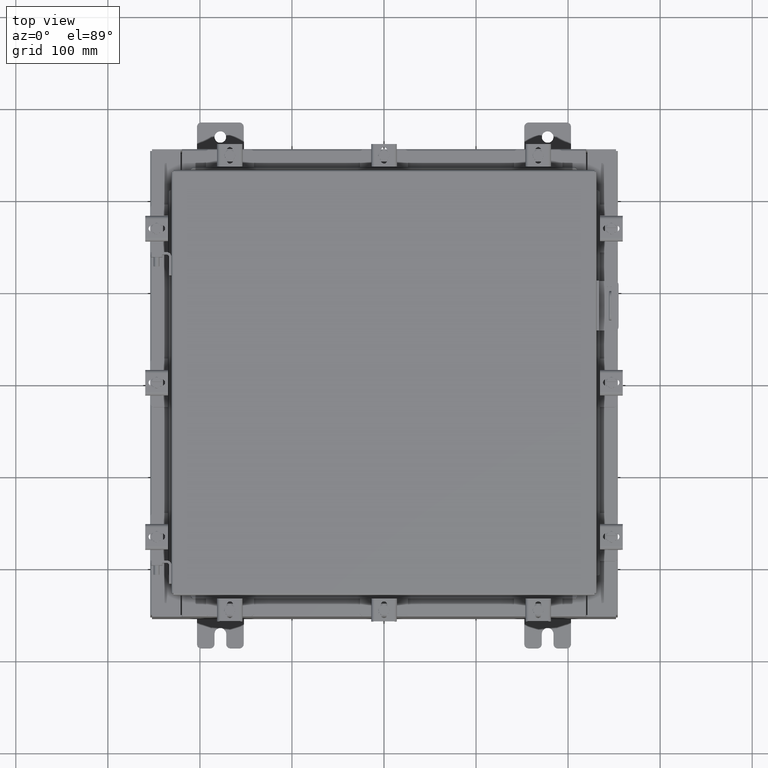
[diagram: clean part render]
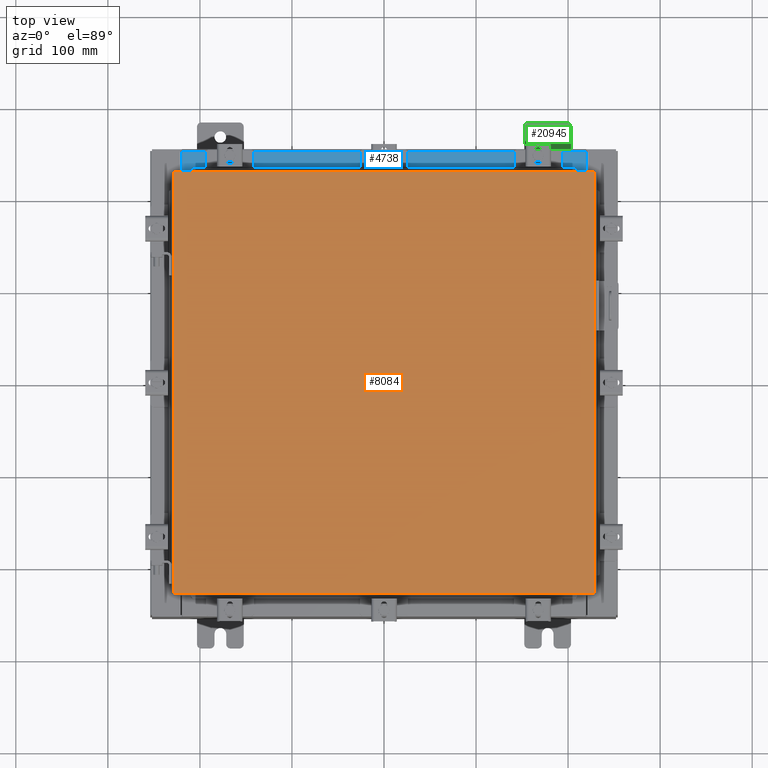
[diagram: same view with three faces highlighted in distinct colors, each labeled with its STEP entity id]
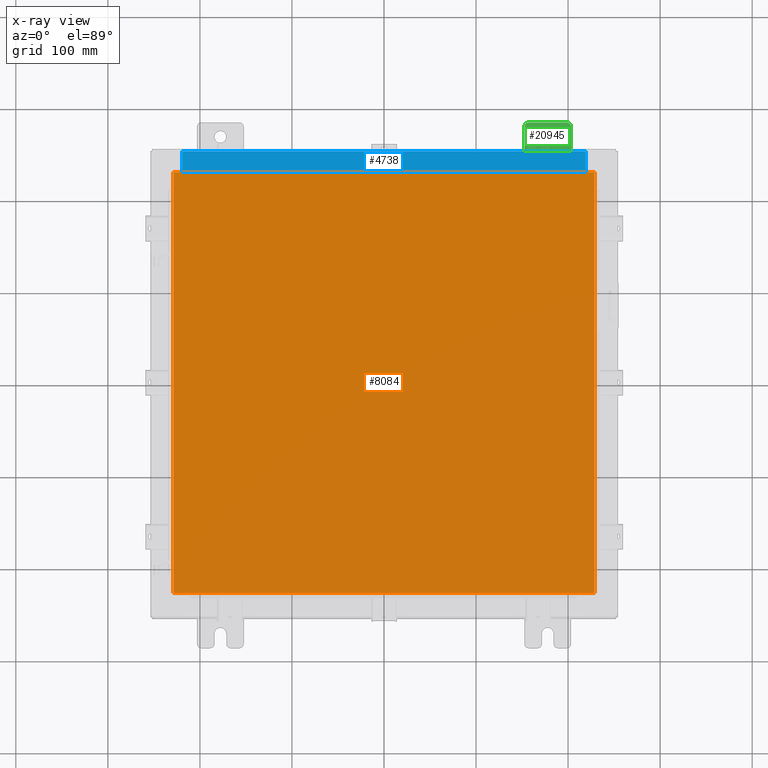
[diagram: x-ray of the same camera — body ghosted, the three highlighted faces saturated]
A machine part, top view with three faces highlighted in distinct colors.
The next image is the same camera in x-ray (body ghosted, the three faces saturated) — at least one of them is partly hidden behind the body in this view.
Their STEP definitions:

[orange] entity #8084 — the highlighted planar face has unit normal (0, 0, -1).
#364 = CARTESIAN_POINT ( 'NONE',  ( 0.0000000000000000000, 0.0000000000000000000, 0.0000000000000000000 ) ) ;
#685 = VECTOR ( 'NONE', #7649, 39.37007874015748100 ) ;
#1277 = CARTESIAN_POINT ( 'NONE',  ( -9.006299999999997800, 9.006299999999999500, -1.092739197465705300E-015 ) ) ;
#1596 = CARTESIAN_POINT ( 'NONE',  ( 9.006300000000001300, -9.006299999999999500, 0.0000000000000000000 ) ) ;
#1847 = CARTESIAN_POINT ( 'NONE',  ( 9.006300000000001300, 9.006299999999999500, 0.0000000000000000000 ) ) ;
#2116 = DIRECTION ( 'NONE',  ( -1.000000000000000000, 0.0000000000000000000, -0.0000000000000000000 ) ) ;
#2186 = VERTEX_POINT ( 'NONE', #15948 ) ;
#2196 = DIRECTION ( 'NONE',  ( -1.000000000000000000, -0.0000000000000000000, -0.0000000000000000000 ) ) ;
#3673 = VECTOR ( 'NONE', #20403, 39.37007874015748100 ) ;
#3798 = EDGE_CURVE ( 'NONE', #11006, #18369, #21115, .T. ) ;
#3810 = ORIENTED_EDGE ( 'NONE', *, *, #3798, .T. ) ;
#4671 = CARTESIAN_POINT ( 'NONE',  ( 9.006300000000001300, -9.006299999999999500, 0.0000000000000000000 ) ) ;
#6293 = EDGE_LOOP ( 'NONE', ( #19772, #3810, #17375, #11751 ) ) ;
#6444 = EDGE_CURVE ( 'NONE', #18369, #7060, #7417, .T. ) ;
#6595 = FACE_OUTER_BOUND ( 'NONE', #6293, .T. ) ;
#7060 = VERTEX_POINT ( 'NONE', #14791 ) ;
#7351 = PLANE ( 'NONE',  #13491 ) ;
#7417 = LINE ( 'NONE', #12650, #11482 ) ;
#7649 = DIRECTION ( 'NONE',  ( 1.000000000000000000, -0.0000000000000000000, -0.0000000000000000000 ) ) ;
#8084 = ADVANCED_FACE ( 'NONE', ( #6595 ), #7351, .F. ) ;
#9991 = LINE ( 'NONE', #16292, #685 ) ;
#11006 = VERTEX_POINT ( 'NONE', #1596 ) ;
#11352 = EDGE_CURVE ( 'NONE', #2186, #11006, #9991, .T. ) ;
#11482 = VECTOR ( 'NONE', #2196, 39.37007874015748100 ) ;
#11692 = DIRECTION ( 'NONE',  ( 0.0000000000000000000, 1.000000000000000000, 0.0000000000000000000 ) ) ;
#11751 = ORIENTED_EDGE ( 'NONE', *, *, #16034, .T. ) ;
#12402 = VECTOR ( 'NONE', #11692, 39.37007874015748100 ) ;
#12577 = DIRECTION ( 'NONE',  ( 0.0000000000000000000, 0.0000000000000000000, -1.000000000000000000 ) ) ;
#12650 = CARTESIAN_POINT ( 'NONE',  ( 9.006300000000001300, 9.006299999999999500, 0.0000000000000000000 ) ) ;
#13491 = AXIS2_PLACEMENT_3D ( 'NONE', #364, #12577, #2116 ) ;
#14791 = CARTESIAN_POINT ( 'NONE',  ( -9.006299999999997800, 9.006299999999999500, -1.092739197465705300E-015 ) ) ;
#15948 = CARTESIAN_POINT ( 'NONE',  ( -9.006299999999997800, -9.006299999999999500, 0.0000000000000000000 ) ) ;
#16034 = EDGE_CURVE ( 'NONE', #7060, #2186, #17594, .T. ) ;
#16292 = CARTESIAN_POINT ( 'NONE',  ( -9.006299999999997800, -9.006299999999999500, 0.0000000000000000000 ) ) ;
#17375 = ORIENTED_EDGE ( 'NONE', *, *, #6444, .T. ) ;
#17594 = LINE ( 'NONE', #1277, #3673 ) ;
#18369 = VERTEX_POINT ( 'NONE', #1847 ) ;
#19772 = ORIENTED_EDGE ( 'NONE', *, *, #11352, .T. ) ;
#20403 = DIRECTION ( 'NONE',  ( 0.0000000000000000000, -1.000000000000000000, 0.0000000000000000000 ) ) ;
#21115 = LINE ( 'NONE', #4671, #12402 ) ;

[blue] entity #4738 — the highlighted planar face has unit normal (0, 0, 1).
#270 = CARTESIAN_POINT ( 'NONE',  ( -8.637200000000000000, -1.287299999999999200, 3.000000000000005300 ) ) ;
#783 = VERTEX_POINT ( 'NONE', #7765 ) ;
#1209 = CARTESIAN_POINT ( 'NONE',  ( -8.637200000000000000, -0.08770000000000000000, 3.000000000000000900 ) ) ;
#1402 = ORIENTED_EDGE ( 'NONE', *, *, #18797, .T. ) ;
#2471 = DIRECTION ( 'NONE',  ( -0.0000000000000000000, 1.000000000000000000, -3.566381192773190000E-015 ) ) ;
#3634 = LINE ( 'NONE', #4256, #12371 ) ;
#4256 = CARTESIAN_POINT ( 'NONE',  ( -8.637200000000000000, -0.07469999999999973900, 3.000000000000000900 ) ) ;
#4583 = CARTESIAN_POINT ( 'NONE',  ( -2.773851121247453900E-018, -0.08770000000000000000, 3.000000000000001300 ) ) ;
#4738 = ADVANCED_FACE ( 'NONE', ( #12096 ), #19948, .T. ) ;
#5003 = LINE ( 'NONE', #13374, #14251 ) ;
#5248 = ORIENTED_EDGE ( 'NONE', *, *, #17817, .F. ) ;
#5523 = LINE ( 'NONE', #16118, #14232 ) ;
#5909 = EDGE_LOOP ( 'NONE', ( #6785, #14286, #5248, #1402 ) ) ;
#6017 = CARTESIAN_POINT ( 'NONE',  ( 0.0000000000000000000, 1.069354855923099900E-014, 3.000000000000000900 ) ) ;
#6785 = ORIENTED_EDGE ( 'NONE', *, *, #20841, .F. ) ;
#6832 = VERTEX_POINT ( 'NONE', #1209 ) ;
#7213 = VERTEX_POINT ( 'NONE', #17481 ) ;
#7765 = CARTESIAN_POINT ( 'NONE',  ( 8.637200000000000000, -1.287299999999999900, 3.000000000000005300 ) ) ;
#7793 = AXIS2_PLACEMENT_3D ( 'NONE', #6017, #14685, #21701 ) ;
#9646 = VERTEX_POINT ( 'NONE', #270 ) ;
#9734 = LINE ( 'NONE', #4583, #17891 ) ;
#9845 = DIRECTION ( 'NONE',  ( -1.000000000000000000, 3.162886113166609200E-017, -1.128005754888089100E-031 ) ) ;
#12096 = FACE_OUTER_BOUND ( 'NONE', #5909, .T. ) ;
#12371 = VECTOR ( 'NONE', #2471, 39.37007874015748100 ) ;
#13374 = CARTESIAN_POINT ( 'NONE',  ( 8.637200000000000000, -1.287299999999999900, 3.000000000000005300 ) ) ;
#14232 = VECTOR ( 'NONE', #19616, 39.37007874015748100 ) ;
#14251 = VECTOR ( 'NONE', #20308, 39.37007874015748100 ) ;
#14286 = ORIENTED_EDGE ( 'NONE', *, *, #20970, .F. ) ;
#14685 = DIRECTION ( 'NONE',  ( 0.0000000000000000000, 3.566381192773190000E-015, 1.000000000000000000 ) ) ;
#16118 = CARTESIAN_POINT ( 'NONE',  ( 8.637200000000000000, -1.300299999999999800, 3.000000000000005300 ) ) ;
#17481 = CARTESIAN_POINT ( 'NONE',  ( 8.637200000000000000, -0.08769999999999965300, 3.000000000000000900 ) ) ;
#17817 = EDGE_CURVE ( 'NONE', #7213, #783, #5523, .T. ) ;
#17891 = VECTOR ( 'NONE', #9845, 39.37007874015748100 ) ;
#18797 = EDGE_CURVE ( 'NONE', #7213, #6832, #9734, .T. ) ;
#19616 = DIRECTION ( 'NONE',  ( -0.0000000000000000000, -1.000000000000000000, 3.566381192773190000E-015 ) ) ;
#19948 = PLANE ( 'NONE',  #7793 ) ;
#20308 = DIRECTION ( 'NONE',  ( -1.000000000000000000, 0.0000000000000000000, 0.0000000000000000000 ) ) ;
#20841 = EDGE_CURVE ( 'NONE', #9646, #6832, #3634, .T. ) ;
#20970 = EDGE_CURVE ( 'NONE', #783, #9646, #5003, .T. ) ;
#21701 = DIRECTION ( 'NONE',  ( 0.0000000000000000000, -1.000000000000000000, 3.566381192773190000E-015 ) ) ;

[green] entity #20945 — the highlighted planar face has unit normal (0, 0, 1).
#313 = LINE ( 'NONE', #740, #3848 ) ;
#386 = LINE ( 'NONE', #5041, #13207 ) ;
#740 = CARTESIAN_POINT ( 'NONE',  ( 0.0000000000000000000, -1.250000000000002200, 0.9999999999999992200 ) ) ;
#751 = CIRCLE ( 'NONE', #20223, 0.2499999999999999200 ) ;
#829 = EDGE_CURVE ( 'NONE', #4617, #11152, #18131, .T. ) ;
#847 = CARTESIAN_POINT ( 'NONE',  ( 3.910348609313009100E-016, 0.6249999999999992200, -0.2499999999999999200 ) ) ;
#909 = AXIS2_PLACEMENT_3D ( 'NONE', #7927, #10477, #11564 ) ;
#983 = ORIENTED_EDGE ( 'NONE', *, *, #20232, .T. ) ;
#1523 = LINE ( 'NONE', #14775, #22514 ) ;
#1630 = ORIENTED_EDGE ( 'NONE', *, *, #9908, .F. ) ;
#1718 = VERTEX_POINT ( 'NONE', #4129 ) ;
#2406 = ORIENTED_EDGE ( 'NONE', *, *, #15284, .T. ) ;
#2488 = DIRECTION ( 'NONE',  ( 0.0000000000000000000, -1.639108796198553600E-015, -1.000000000000000000 ) ) ;
#2801 = LINE ( 'NONE', #11279, #16172 ) ;
#2820 = VECTOR ( 'NONE', #16554, 39.37007874015748100 ) ;
#2856 = PLANE ( 'NONE',  #10600 ) ;
#2875 = CARTESIAN_POINT ( 'NONE',  ( 1.928684683526964400E-016, -1.060000000000003400, -0.2499999999999994400 ) ) ;
#3070 = CARTESIAN_POINT ( 'NONE',  ( 4.039428427013647300E-016, 0.6249999999999992200, -9.783840404509077400E-018 ) ) ;
#3157 = CARTESIAN_POINT ( 'NONE',  ( 0.0000000000000000000, -1.060000000000003400, -0.4400000000000005000 ) ) ;
#3262 = LINE ( 'NONE', #15776, #16633 ) ;
#3448 = DIRECTION ( 'NONE',  ( 0.0000000000000000000, 1.000000000000000000, -1.639108796198558100E-015 ) ) ;
#3586 = VERTEX_POINT ( 'NONE', #7524 ) ;
#3848 = VECTOR ( 'NONE', #2488, 39.37007874015748100 ) ;
#3871 = EDGE_CURVE ( 'NONE', #10374, #1718, #20013, .T. ) ;
#4129 = CARTESIAN_POINT ( 'NONE',  ( 0.0000000000000000000, -1.250000000000002400, 0.8099999999999980500 ) ) ;
#4227 = ORIENTED_EDGE ( 'NONE', *, *, #12245, .T. ) ;
#4312 = DIRECTION ( 'NONE',  ( 1.000000000000000000, 0.0000000000000000000, -0.0000000000000000000 ) ) ;
#4447 = VERTEX_POINT ( 'NONE', #22559 ) ;
#4494 = EDGE_CURVE ( 'NONE', #16823, #10881, #6669, .T. ) ;
#4617 = VERTEX_POINT ( 'NONE', #9095 ) ;
#4754 = EDGE_CURVE ( 'NONE', #3586, #8705, #2801, .T. ) ;
#4832 = DIRECTION ( 'NONE',  ( -5.163192708025533800E-017, 0.0000000000000000000, -1.000000000000000000 ) ) ;
#4903 = DIRECTION ( 'NONE',  ( 0.0000000000000000000, 0.0000000000000000000, -1.000000000000000000 ) ) ;
#4948 = AXIS2_PLACEMENT_3D ( 'NONE', #3157, #15335, #4903 ) ;
#4949 = EDGE_CURVE ( 'NONE', #18922, #5348, #16433, .T. ) ;
#5041 = CARTESIAN_POINT ( 'NONE',  ( 6.829619984160658000E-017, -1.250000000000003800, 0.2500000000000005000 ) ) ;
#5050 = ORIENTED_EDGE ( 'NONE', *, *, #829, .T. ) ;
#5240 = CIRCLE ( 'NONE', #15807, 0.2499999999999999200 ) ;
#5348 = VERTEX_POINT ( 'NONE', #20159 ) ;
#5848 = VERTEX_POINT ( 'NONE', #847 ) ;
#6223 = ORIENTED_EDGE ( 'NONE', *, *, #10066, .T. ) ;
#6379 = ORIENTED_EDGE ( 'NONE', *, *, #3871, .T. ) ;
#6669 = CIRCLE ( 'NONE', #10532, 0.2499999999999999200 ) ;
#6825 = DIRECTION ( 'NONE',  ( 6.556435184794182400E-016, 1.000000000000000000, 0.0000000000000000000 ) ) ;
#7219 = CARTESIAN_POINT ( 'NONE',  ( 4.168508244714285900E-016, 0.6249999999999992200, 0.2499999999999999200 ) ) ;
#7443 = CARTESIAN_POINT ( 'NONE',  ( 0.0000000000000000000, -1.060000000000001600, 0.8099999999999978300 ) ) ;
#7524 = CARTESIAN_POINT ( 'NONE',  ( 0.0000000000000000000, 1.249999999999994700, -0.8100000000000092700 ) ) ;
#7846 = ORIENTED_EDGE ( 'NONE', *, *, #22148, .T. ) ;
#7918 = EDGE_LOOP ( 'NONE', ( #11598, #6379, #7846, #19427, #4227, #13777, #18525, #2406, #8736, #5050, #983, #6223, #20757, #14361 ) ) ;
#7927 = CARTESIAN_POINT ( 'NONE',  ( 0.0000000000000000000, -1.060000000000004100, -0.8100000000000050500 ) ) ;
#8011 = ORIENTED_EDGE ( 'NONE', *, *, #18180, .F. ) ;
#8172 = DIRECTION ( 'NONE',  ( -0.0000000000000000000, 0.0000000000000000000, -1.000000000000000000 ) ) ;
#8242 = CARTESIAN_POINT ( 'NONE',  ( 4.039428427013647300E-016, 0.6249999999999992200, -9.783840404509077400E-018 ) ) ;
#8364 = VERTEX_POINT ( 'NONE', #2875 ) ;
#8433 = DIRECTION ( 'NONE',  ( 1.000000000000000000, 0.0000000000000000000, -0.0000000000000000000 ) ) ;
#8705 = VERTEX_POINT ( 'NONE', #13409 ) ;
#8736 = ORIENTED_EDGE ( 'NONE', *, *, #15774, .T. ) ;
#8805 = CARTESIAN_POINT ( 'NONE',  ( 4.780733988912460100E-016, -0.6249999999999993300, 5.858939755051854500E-017 ) ) ;
#8893 = EDGE_CURVE ( 'NONE', #21666, #10374, #3262, .T. ) ;
#9095 = CARTESIAN_POINT ( 'NONE',  ( 0.0000000000000000000, -1.250000000000005300, -0.8100000000000047200 ) ) ;
#9192 = DIRECTION ( 'NONE',  ( 0.0000000000000000000, 0.0000000000000000000, -1.000000000000000000 ) ) ;
#9274 = VERTEX_POINT ( 'NONE', #21992 ) ;
#9280 = AXIS2_PLACEMENT_3D ( 'NONE', #14726, #4312, #16501 ) ;
#9380 = DIRECTION ( 'NONE',  ( 1.000000000000000000, 0.0000000000000000000, -0.0000000000000000000 ) ) ;
#9515 = CIRCLE ( 'NONE', #9280, 0.1900000000000011100 ) ;
#9535 = DIRECTION ( 'NONE',  ( 0.0000000000000000000, 1.639108796198553600E-015, 1.000000000000000000 ) ) ;
#9908 = EDGE_CURVE ( 'NONE', #5848, #13162, #751, .T. ) ;
#9934 = CARTESIAN_POINT ( 'NONE',  ( 0.0000000000000000000, 1.059999999999996500, 0.9999999999999953400 ) ) ;
#9952 = DIRECTION ( 'NONE',  ( -5.163192708025533800E-017, 0.0000000000000000000, -1.000000000000000000 ) ) ;
#10066 = EDGE_CURVE ( 'NONE', #9274, #3586, #9515, .T. ) ;
#10180 = FACE_OUTER_BOUND ( 'NONE', #7918, .T. ) ;
#10374 = VERTEX_POINT ( 'NONE', #15488 ) ;
#10477 = DIRECTION ( 'NONE',  ( 1.000000000000000000, 0.0000000000000000000, -0.0000000000000000000 ) ) ;
#10520 = DIRECTION ( 'NONE',  ( -6.523827964459551700E-016, -1.000000000000000000, 0.0000000000000000000 ) ) ;
#10532 = AXIS2_PLACEMENT_3D ( 'NONE', #8805, #20956, #10520 ) ;
#10600 = AXIS2_PLACEMENT_3D ( 'NONE', #16827, #18574, #8172 ) ;
#10881 = VERTEX_POINT ( 'NONE', #15299 ) ;
#11152 = VERTEX_POINT ( 'NONE', #12433 ) ;
#11279 = CARTESIAN_POINT ( 'NONE',  ( 0.0000000000000000000, 1.249999999999994200, -1.000000000000010400 ) ) ;
#11339 = EDGE_CURVE ( 'NONE', #8705, #21666, #14604, .T. ) ;
#11564 = DIRECTION ( 'NONE',  ( 0.0000000000000000000, 0.0000000000000000000, -1.000000000000000000 ) ) ;
#11598 = ORIENTED_EDGE ( 'NONE', *, *, #8893, .T. ) ;
#12245 = EDGE_CURVE ( 'NONE', #5348, #16823, #386, .T. ) ;
#12266 = CARTESIAN_POINT ( 'NONE',  ( 0.0000000000000000000, -0.6249999999999992200, 0.2500000000000005000 ) ) ;
#12433 = CARTESIAN_POINT ( 'NONE',  ( 0.0000000000000000000, -1.060000000000004500, -1.000000000000006400 ) ) ;
#12720 = CIRCLE ( 'NONE', #4948, 0.1900000000000011100 ) ;
#13162 = VERTEX_POINT ( 'NONE', #7219 ) ;
#13207 = VECTOR ( 'NONE', #6825, 39.37007874015748100 ) ;
#13409 = CARTESIAN_POINT ( 'NONE',  ( 0.0000000000000000000, 1.249999999999997300, 0.8099999999999935000 ) ) ;
#13777 = ORIENTED_EDGE ( 'NONE', *, *, #4494, .T. ) ;
#14361 = ORIENTED_EDGE ( 'NONE', *, *, #11339, .T. ) ;
#14410 = EDGE_LOOP ( 'NONE', ( #1630, #8011 ) ) ;
#14560 = LINE ( 'NONE', #15643, #22203 ) ;
#14604 = CIRCLE ( 'NONE', #20362, 0.1900000000000011100 ) ;
#14726 = CARTESIAN_POINT ( 'NONE',  ( 0.0000000000000000000, 1.059999999999993600, -0.8100000000000089400 ) ) ;
#14775 = CARTESIAN_POINT ( 'NONE',  ( 0.0000000000000000000, -1.250000000000002200, 0.9999999999999992200 ) ) ;
#14790 = FACE_BOUND ( 'NONE', #14410, .T. ) ;
#15253 = DIRECTION ( 'NONE',  ( 1.000000000000000000, -0.0000000000000000000, -5.163192708025532000E-017 ) ) ;
#15284 = EDGE_CURVE ( 'NONE', #8364, #4447, #12720, .T. ) ;
#15299 = CARTESIAN_POINT ( 'NONE',  ( 4.780733988912460100E-016, -0.6249999999999993300, -0.2499999999999998600 ) ) ;
#15335 = DIRECTION ( 'NONE',  ( 1.000000000000000000, 0.0000000000000000000, -0.0000000000000000000 ) ) ;
#15377 = CARTESIAN_POINT ( 'NONE',  ( 0.0000000000000000000, -1.250000000000003100, 0.4400000000000020000 ) ) ;
#15488 = CARTESIAN_POINT ( 'NONE',  ( 0.0000000000000000000, -1.060000000000001200, 0.9999999999999988900 ) ) ;
#15643 = CARTESIAN_POINT ( 'NONE',  ( 0.0000000000000000000, -1.250000000000005600, -1.000000000000006200 ) ) ;
#15774 = EDGE_CURVE ( 'NONE', #4447, #4617, #1523, .T. ) ;
#15776 = CARTESIAN_POINT ( 'NONE',  ( 0.0000000000000000000, 1.249999999999997600, 0.9999999999999951200 ) ) ;
#15807 = AXIS2_PLACEMENT_3D ( 'NONE', #3070, #15253, #4832 ) ;
#16067 = AXIS2_PLACEMENT_3D ( 'NONE', #7443, #19591, #9192 ) ;
#16172 = VECTOR ( 'NONE', #9535, 39.37007874015748100 ) ;
#16433 = CIRCLE ( 'NONE', #21765, 0.1900000000000011400 ) ;
#16501 = DIRECTION ( 'NONE',  ( 0.0000000000000000000, 0.0000000000000000000, -1.000000000000000000 ) ) ;
#16554 = DIRECTION ( 'NONE',  ( -6.556435184794182400E-016, -1.000000000000000000, -1.639108796198545600E-016 ) ) ;
#16633 = VECTOR ( 'NONE', #20951, 39.37007874015748100 ) ;
#16823 = VERTEX_POINT ( 'NONE', #12266 ) ;
#16827 = CARTESIAN_POINT ( 'NONE',  ( 0.0000000000000000000, 0.0000000000000000000, 0.0000000000000000000 ) ) ;
#18131 = CIRCLE ( 'NONE', #909, 0.1900000000000011100 ) ;
#18180 = EDGE_CURVE ( 'NONE', #13162, #5848, #5240, .T. ) ;
#18234 = CARTESIAN_POINT ( 'NONE',  ( 4.780733988912460100E-016, -0.6249999999999993300, -0.2499999999999993900 ) ) ;
#18238 = DIRECTION ( 'NONE',  ( 0.0000000000000000000, -1.639108796198553600E-015, -1.000000000000000000 ) ) ;
#18525 = ORIENTED_EDGE ( 'NONE', *, *, #20574, .T. ) ;
#18574 = DIRECTION ( 'NONE',  ( 1.000000000000000000, 0.0000000000000000000, -0.0000000000000000000 ) ) ;
#18810 = CARTESIAN_POINT ( 'NONE',  ( 0.0000000000000000000, -1.060000000000002100, 0.4400000000000016700 ) ) ;
#18922 = VERTEX_POINT ( 'NONE', #15377 ) ;
#19427 = ORIENTED_EDGE ( 'NONE', *, *, #4949, .T. ) ;
#19591 = DIRECTION ( 'NONE',  ( 1.000000000000000000, 0.0000000000000000000, -0.0000000000000000000 ) ) ;
#19786 = CARTESIAN_POINT ( 'NONE',  ( 0.0000000000000000000, 1.059999999999996300, 0.8099999999999938400 ) ) ;
#20013 = CIRCLE ( 'NONE', #16067, 0.1900000000000011100 ) ;
#20159 = CARTESIAN_POINT ( 'NONE',  ( 1.928684683526972300E-016, -1.060000000000002100, 0.2500000000000005000 ) ) ;
#20223 = AXIS2_PLACEMENT_3D ( 'NONE', #8242, #20376, #9952 ) ;
#20232 = EDGE_CURVE ( 'NONE', #11152, #9274, #14560, .T. ) ;
#20362 = AXIS2_PLACEMENT_3D ( 'NONE', #19786, #9380, #21532 ) ;
#20376 = DIRECTION ( 'NONE',  ( 1.000000000000000000, -0.0000000000000000000, -5.163192708025532000E-017 ) ) ;
#20564 = DIRECTION ( 'NONE',  ( 0.0000000000000000000, 0.0000000000000000000, -1.000000000000000000 ) ) ;
#20574 = EDGE_CURVE ( 'NONE', #10881, #8364, #21366, .T. ) ;
#20757 = ORIENTED_EDGE ( 'NONE', *, *, #4754, .T. ) ;
#20945 = ADVANCED_FACE ( 'NONE', ( #14790, #10180 ), #2856, .T. ) ;
#20951 = DIRECTION ( 'NONE',  ( 0.0000000000000000000, -1.000000000000000000, 1.639108796198558100E-015 ) ) ;
#20956 = DIRECTION ( 'NONE',  ( -1.000000000000000000, 6.523827964459549700E-016, 5.163192708025532000E-017 ) ) ;
#21366 = LINE ( 'NONE', #18234, #2820 ) ;
#21532 = DIRECTION ( 'NONE',  ( 0.0000000000000000000, 0.0000000000000000000, -1.000000000000000000 ) ) ;
#21666 = VERTEX_POINT ( 'NONE', #9934 ) ;
#21765 = AXIS2_PLACEMENT_3D ( 'NONE', #18810, #8433, #20564 ) ;
#21992 = CARTESIAN_POINT ( 'NONE',  ( 0.0000000000000000000, 1.059999999999993400, -1.000000000000010000 ) ) ;
#22148 = EDGE_CURVE ( 'NONE', #1718, #18922, #313, .T. ) ;
#22203 = VECTOR ( 'NONE', #3448, 39.37007874015748100 ) ;
#22514 = VECTOR ( 'NONE', #18238, 39.37007874015748100 ) ;
#22559 = CARTESIAN_POINT ( 'NONE',  ( 0.0000000000000000000, -1.250000000000004700, -0.4400000000000002200 ) ) ;